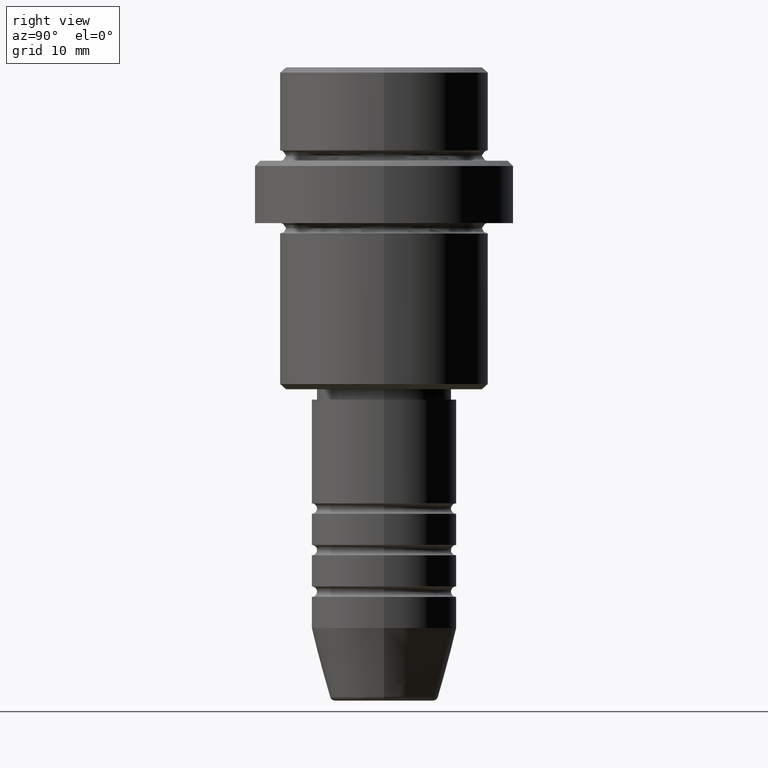
[diagram: clean part render]
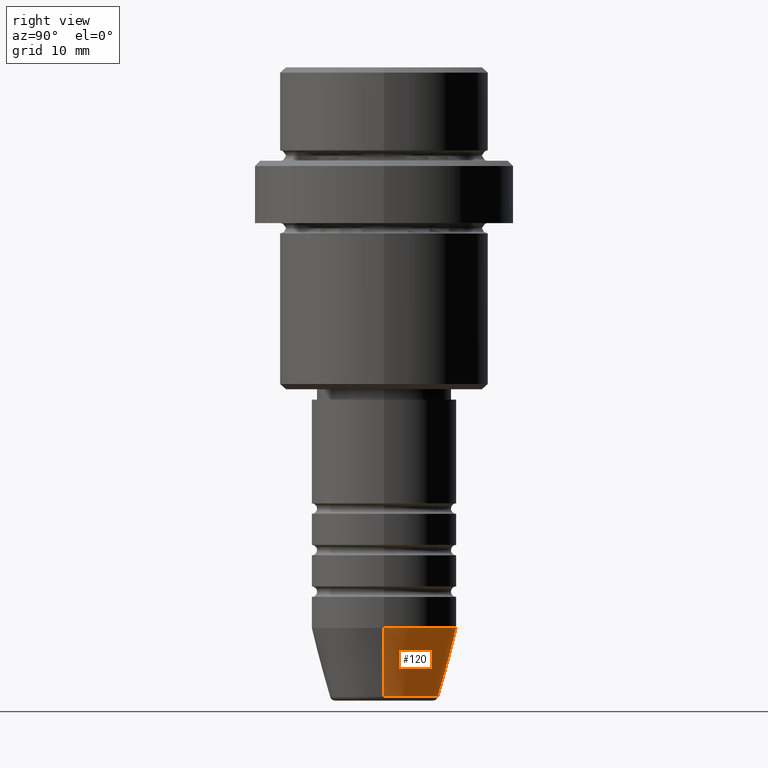
[diagram: same view with one face highlighted and labeled with its STEP entity id]
A machine part, right view. The second image highlights one B-rep face of the part: STEP entity #120.
In plain terms, the highlighted conical surface has half-angle 15 deg.
Its self-contained STEP definition (entity closure, byte-faithful):
#37 = DIRECTION ( 'NONE',  ( 1.000000000000000000, 0.000000000000000000, 0.000000000000000000 ) ) ;
#50 = VECTOR ( 'NONE', #883, 1000.000000000000000 ) ;
#69 = AXIS2_PLACEMENT_3D ( 'NONE', #1380, #426, #1282 ) ;
#120 = ADVANCED_FACE ( 'NONE', ( #1103 ), #792, .T. ) ;
#122 = CIRCLE ( 'NONE', #915, 5.223655072137191269 ) ;
#166 = CIRCLE ( 'NONE', #956, 7.000000000000000000 ) ;
#168 = ORIENTED_EDGE ( 'NONE', *, *, #855, .F. ) ;
#173 = DIRECTION ( 'NONE',  ( 1.000000000000000000, 0.000000000000000000, 0.000000000000000000 ) ) ;
#217 = CARTESIAN_POINT ( 'NONE',  ( 5.223655072137191269, 0.000000000000000000, -60.62940952255126348 ) ) ;
#374 = ORIENTED_EDGE ( 'NONE', *, *, #579, .T. ) ;
#426 = DIRECTION ( 'NONE',  ( -0.000000000000000000, -0.000000000000000000, 1.000000000000000000 ) ) ;
#558 = CARTESIAN_POINT ( 'NONE',  ( 7.000000000000000000, 0.000000000000000000, -54.00000000000000000 ) ) ;
#572 = DIRECTION ( 'NONE',  ( -0.000000000000000000, -0.000000000000000000, 1.000000000000000000 ) ) ;
#579 = EDGE_CURVE ( 'NONE', #1287, #1257, #122, .T. ) ;
#602 = LINE ( 'NONE', #1029, #1343 ) ;
#653 = ORIENTED_EDGE ( 'NONE', *, *, #953, .F. ) ;
#719 = VERTEX_POINT ( 'NONE', #754 ) ;
#754 = CARTESIAN_POINT ( 'NONE',  ( 7.000000000000000000, 0.000000000000000000, -54.00000000000000000 ) ) ;
#787 = EDGE_CURVE ( 'NONE', #1257, #1331, #602, .T. ) ;
#792 = CONICAL_SURFACE ( 'NONE', #69, 7.000000000000000000, 0.2617993877991501850 ) ;
#855 = EDGE_CURVE ( 'NONE', #719, #1331, #166, .T. ) ;
#883 = DIRECTION ( 'NONE',  ( 0.2588190451025214611, 0.000000000000000000, 0.9659258262890680902 ) ) ;
#902 = LINE ( 'NONE', #558, #50 ) ;
#915 = AXIS2_PLACEMENT_3D ( 'NONE', #1109, #572, #37 ) ;
#952 = CARTESIAN_POINT ( 'NONE',  ( -5.223655072137191269, 7.484830028987061160E-16, -60.62940952255126348 ) ) ;
#953 = EDGE_CURVE ( 'NONE', #1287, #719, #902, .T. ) ;
#956 = AXIS2_PLACEMENT_3D ( 'NONE', #1050, #1271, #173 ) ;
#1029 = CARTESIAN_POINT ( 'NONE',  ( -7.000000000000000000, 8.572527594031473190E-16, -54.00000000000000000 ) ) ;
#1050 = CARTESIAN_POINT ( 'NONE',  ( 0.000000000000000000, 0.000000000000000000, -54.00000000000000000 ) ) ;
#1103 = FACE_OUTER_BOUND ( 'NONE', #1353, .T. ) ;
#1109 = CARTESIAN_POINT ( 'NONE',  ( 0.000000000000000000, 0.000000000000000000, -60.62940952255126348 ) ) ;
#1170 = CARTESIAN_POINT ( 'NONE',  ( -7.000000000000000000, 8.572527594031473190E-16, -54.00000000000000000 ) ) ;
#1257 = VERTEX_POINT ( 'NONE', #952 ) ;
#1271 = DIRECTION ( 'NONE',  ( -0.000000000000000000, -0.000000000000000000, 1.000000000000000000 ) ) ;
#1282 = DIRECTION ( 'NONE',  ( 1.000000000000000000, 0.000000000000000000, 0.000000000000000000 ) ) ;
#1287 = VERTEX_POINT ( 'NONE', #217 ) ;
#1331 = VERTEX_POINT ( 'NONE', #1170 ) ;
#1343 = VECTOR ( 'NONE', #1375, 1000.000000000000000 ) ;
#1353 = EDGE_LOOP ( 'NONE', ( #374, #1383, #168, #653 ) ) ;
#1375 = DIRECTION ( 'NONE',  ( -0.2588190451025214611, 3.169619151431773569E-17, 0.9659258262890680902 ) ) ;
#1380 = CARTESIAN_POINT ( 'NONE',  ( 0.000000000000000000, 0.000000000000000000, -54.00000000000000000 ) ) ;
#1383 = ORIENTED_EDGE ( 'NONE', *, *, #787, .T. ) ;